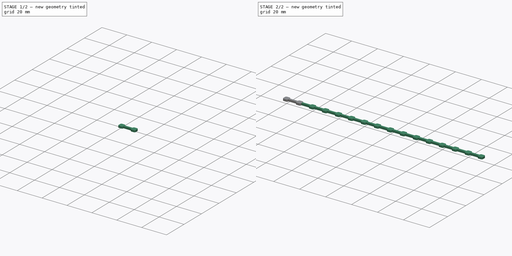
[diagram: build sequence overview — one tinted view per stage of 2, left to right]
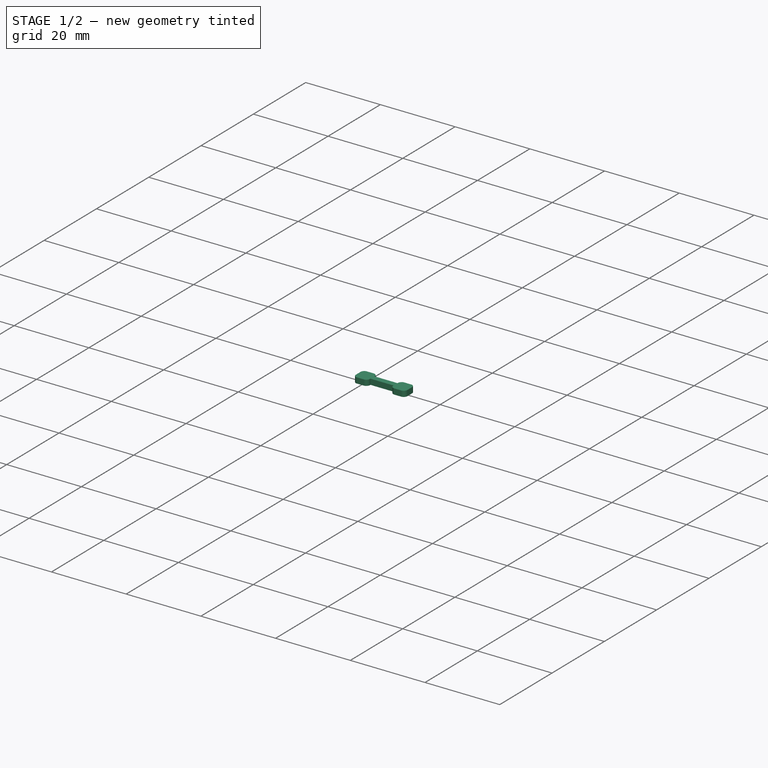
[diagram: stage 1 of 2 — iso view after this stage's code; geometry added in this stage tinted green]
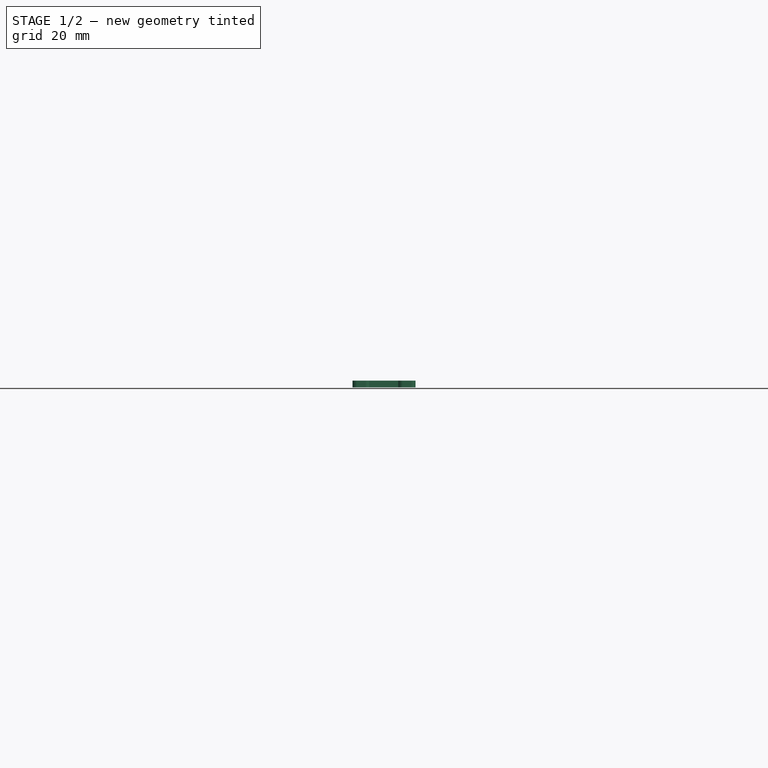
[diagram: stage 1 of 2 — front view after this stage's code; geometry added in this stage tinted green]
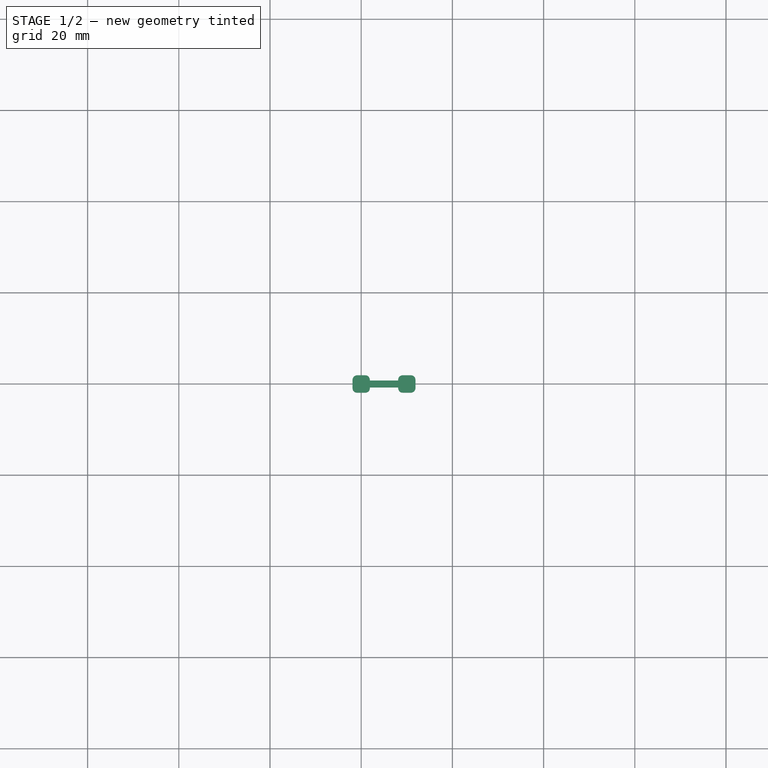
[diagram: stage 1 of 2 — top view after this stage's code; geometry added in this stage tinted green]
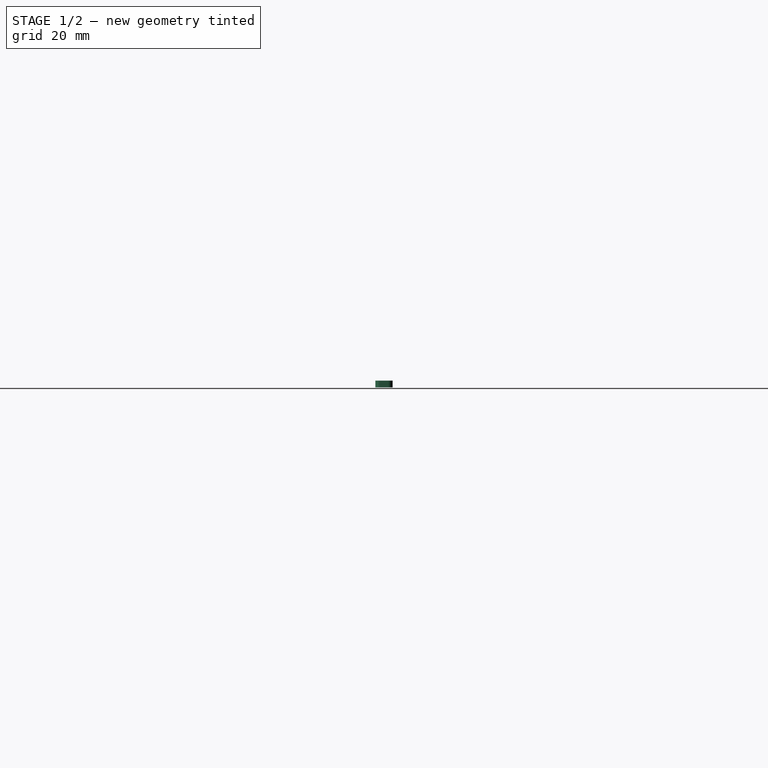
[diagram: stage 1 of 2 — right view after this stage's code; geometry added in this stage tinted green]
FCSTD DOCUMENT  (FreeCAD 0.20R27319 (Git))
Label: Spreader Dots
License: All rights reserved
LicenseURL: http://en.wikipedia.org/wiki/All_rights_reserved
objects: Sketcher::SketchObject×1, PartDesign::Pad×1, PartDesign::LinearPattern×1, PartDesign::Body×1
note: 5 computed .brp shape members not serialized (recipe doc carries the construction recipe); baked Part::Feature solids carry a one-line shape summary decoded from their .brp

FEATURE [Sketcher::SketchObject] Sketch
  FullyConstrained = true
  MapMode = 5
  Support = -> [XY_Plane]
  sketch-geometry (21):
    g0: LineSegment StartX=8.1 StartY=0.75 StartZ=0 EndX=1.9 EndY=0.75 EndZ=0
    g1: LineSegment StartX=1.9 StartY=-0.75 StartZ=0 EndX=8.1 EndY=-0.75 EndZ=0
    g2: GeomPoint X=5 Y=0 Z=0
    g3: LineSegment StartX=-1.9 StartY=0.9 StartZ=0 EndX=-1.9 EndY=-0.9 EndZ=0
    g4: LineSegment StartX=-0.9 StartY=-1.9 StartZ=0 EndX=0.9 EndY=-1.9 EndZ=0
    g5: LineSegment StartX=1.9 StartY=-0.9 StartZ=0 EndX=1.9 EndY=-0.75 EndZ=0
    g6: LineSegment StartX=0.9 StartY=1.9 StartZ=0 EndX=-0.9 EndY=1.9 EndZ=0
    g7: LineSegment StartX=1.9 StartY=0.75 StartZ=0 EndX=1.9 EndY=0.9 EndZ=0
    g8: ArcOfCircle CenterX=0.9 CenterY=0.9 CenterZ=0 NormalX=0 NormalY=0 NormalZ=1 AngleXU=0 Radius=1 StartAngle=1e-16 EndAngle=1.5708
    g9: ArcOfCircle CenterX=-0.9 CenterY=0.9 CenterZ=0 NormalX=0 NormalY=0 NormalZ=1 AngleXU=0 Radius=1 StartAngle=1.5708 EndAngle=3.14159
    g10: ArcOfCircle CenterX=-0.9 CenterY=-0.9 CenterZ=0 NormalX=0 NormalY=0 NormalZ=1 AngleXU=0 Radius=1 StartAngle=3.14159 EndAngle=4.71239
    g11: ArcOfCircle CenterX=0.9 CenterY=-0.9 CenterZ=0 NormalX=0 NormalY=0 NormalZ=1 AngleXU=0 Radius=1 StartAngle=4.71239 EndAngle=6.28319
    g12: LineSegment StartX=9.1 StartY=-1.9 StartZ=0 EndX=10.9 EndY=-1.9 EndZ=0
    g13: LineSegment StartX=11.9 StartY=-0.9 StartZ=0 EndX=11.9 EndY=0.9 EndZ=0
    g14: ArcOfCircle CenterX=9.1 CenterY=0.9 CenterZ=0 NormalX=0 NormalY=0 NormalZ=1 AngleXU=0 Radius=1 StartAngle=1.5708 EndAngle=3.14159
    g15: ArcOfCircle CenterX=9.1 CenterY=-0.9 CenterZ=0 NormalX=0 NormalY=0 NormalZ=1 AngleXU=0 Radius=1 StartAngle=3.14159 EndAngle=4.71239
    g16: ArcOfCircle CenterX=10.9 CenterY=0.9 CenterZ=0 NormalX=0 NormalY=0 NormalZ=1 AngleXU=0 Radius=1 StartAngle=0 EndAngle=1.5708
    g17: ArcOfCircle CenterX=10.9 CenterY=-0.9 CenterZ=0 NormalX=0 NormalY=0 NormalZ=1 AngleXU=0 Radius=1 StartAngle=4.71239 EndAngle=6.28319
    g18: LineSegment StartX=8.1 StartY=0.9 StartZ=0 EndX=8.1 EndY=0.75 EndZ=0
    g19: LineSegment StartX=8.1 StartY=-0.9 StartZ=0 EndX=8.1 EndY=-0.75 EndZ=0
    g20: LineSegment StartX=9.1 StartY=1.9 StartZ=0 EndX=10.9 EndY=1.9 EndZ=0
  constraints (52):
    c: Horizontal(g0)
    c: Horizontal(g1)
    c: Symmetric(g0,g1,g2)
    c: PointOnObject(g2,g-1)
    c: Horizontal(g4)
    c: Horizontal(g6)
    c: Vertical(g3)
    c: Vertical(g5)
    c: Coincident(g7,g0)
    c: Tangent(g6,g8) = -1.5708
    c: Tangent(g7,g8) = -1.5708
    c: Tangent(g3,g9) = -1.5708
    c: Tangent(g6,g9) = -1.5708
    c: Tangent(g3,g10) = -1.5708
    c: Tangent(g4,g10) = -1.5708
    c: Tangent(g4,g11) = -1.5708
    c: Tangent(g5,g11) = -1.5708
    c: Equal(g9,g8)
    c: Equal(g8,g11)
    c: Coincident(g1,g5)
    c: Symmetric(g9,g10,g-1)
    c: Radius(g9) = 1
    c: Symmetric(g7,g3,g-2)
    c: Equal(g6,g3)
    c: Equal(g3,g4)
    c: DistanceY(g4,g6) = 3.8
    c: Horizontal(g12)
    c: Vertical(g13)
    c: Tangent(g12,g15) = -1.5708
    c: Tangent(g13,g16) = -1.5708
    c: Tangent(g12,g17) = -1.5708
    c: Tangent(g13,g17) = -1.5708
    c: Equal(g14,g16)
    c: Equal(g16,g17)
    c: Equal(g17,g9)
    c: Vertical(g19)
    c: Vertical(g18)
    c: Coincident(g0,g18)
    c: Coincident(g1,g19)
    c: Horizontal(g20)
    c: Vertical(g0,g1)
    c: DistanceY(g1,g0) = 1.5
    c: Horizontal(g14,g8)
    c: Horizontal(g15,g11)
    c: Tangent(g20,g14) = 1.5708
    c: Tangent(g20,g16) = 1.5708
    c: Tangent(g18,g14) = -1.5708
    c: Tangent(g19,g15) = 1.5708
    c: Horizontal(g15,g17)
    c: Equal(g20,g13)
    c: DistanceX(g5,g13) = 10
    c: DistanceX(g3,g15) = 10
FEATURE [PartDesign::Pad] Pad
  Direction = (0,0,1)
  Length = 1.5
  Length2 = 10
  Profile = -> Sketch
  ReferenceAxis = -> Sketch [N_Axis]
  Type = 0
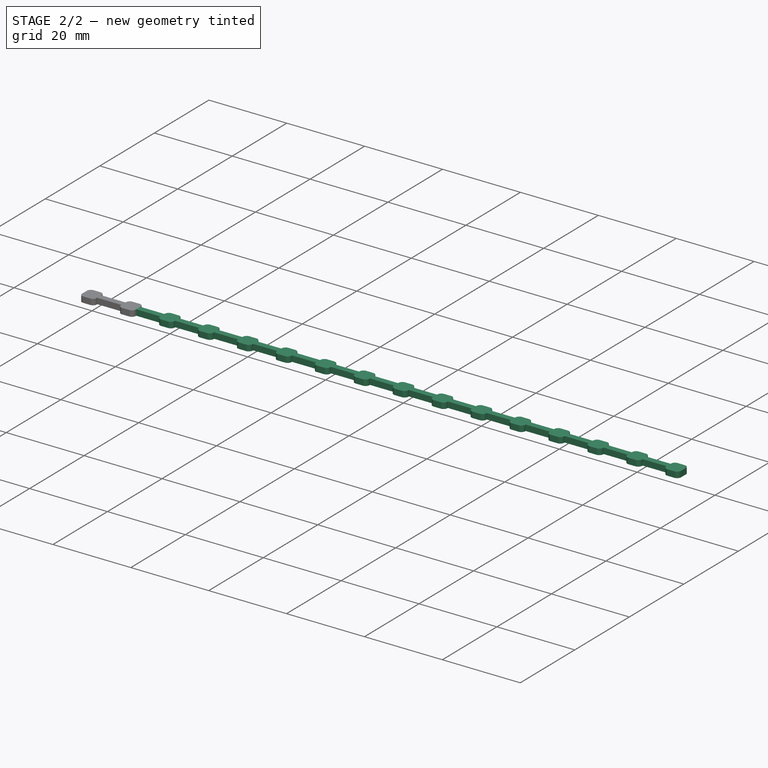
[diagram: stage 2 of 2 — iso view after this stage's code; geometry added in this stage tinted green]
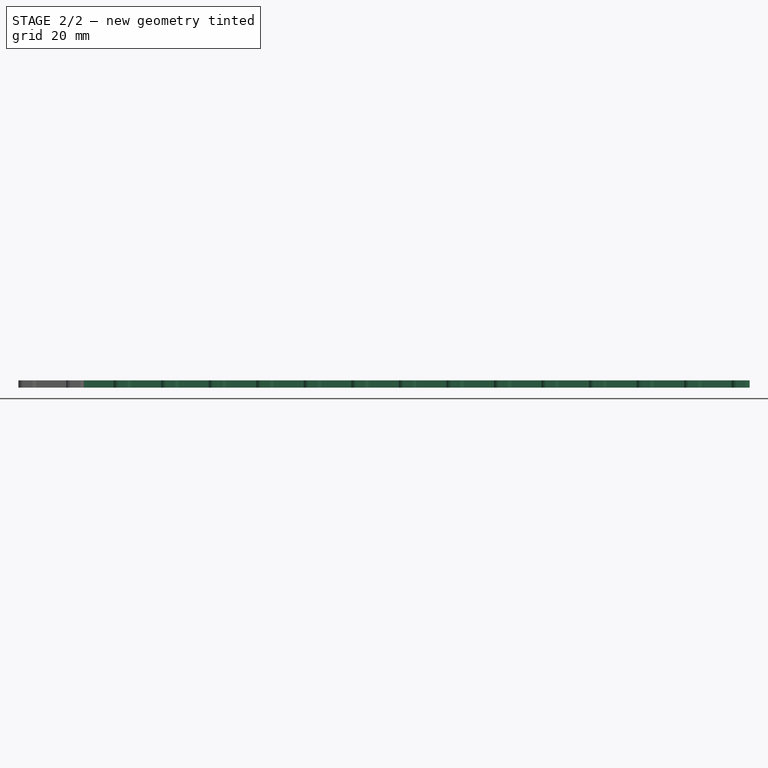
[diagram: stage 2 of 2 — front view after this stage's code; geometry added in this stage tinted green]
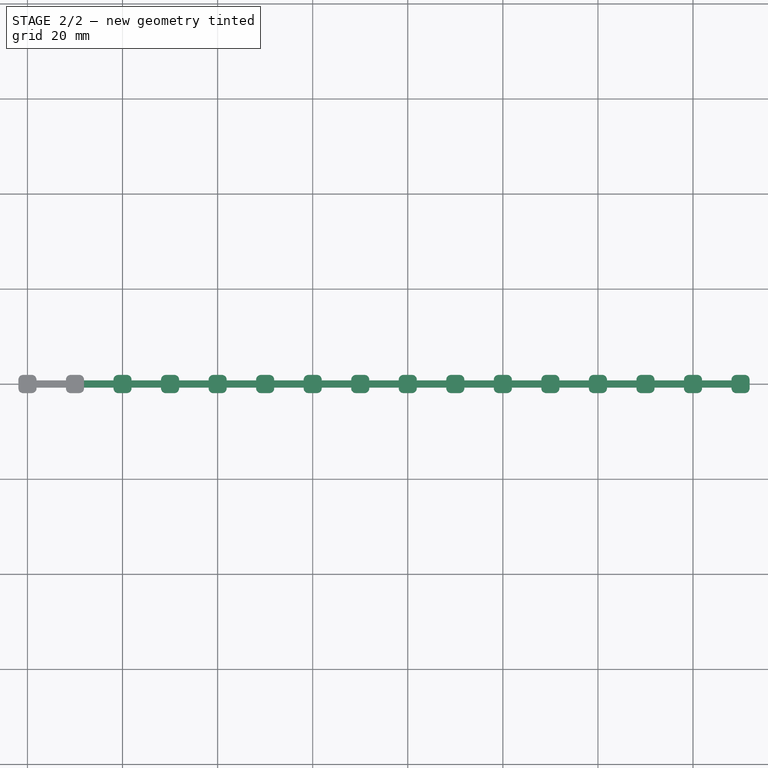
[diagram: stage 2 of 2 — top view after this stage's code; geometry added in this stage tinted green]
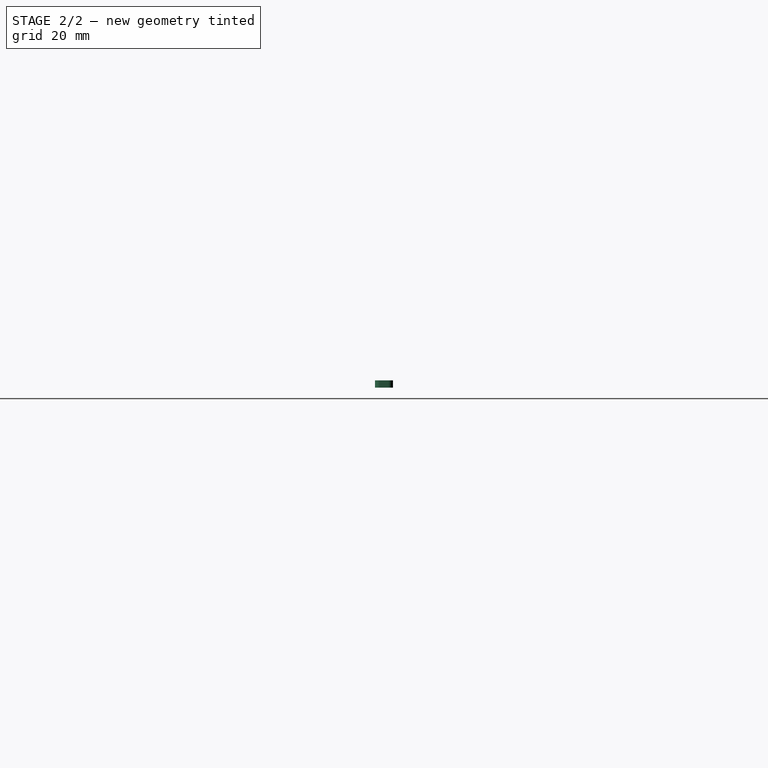
[diagram: stage 2 of 2 — right view after this stage's code; geometry added in this stage tinted green]
FEATURE [PartDesign::LinearPattern] LinearPattern
  BaseFeature = -> Pad
  Direction = -> Sketch [H_Axis]
  Length = 140
  Occurrences = 15
  Originals = -> [Pad]
  Overlap = 0
FEATURE [PartDesign::Body] Body
  Group = -> [Sketch,Pad,LinearPattern]
  Origin = -> Origin
  Tip = -> LinearPattern
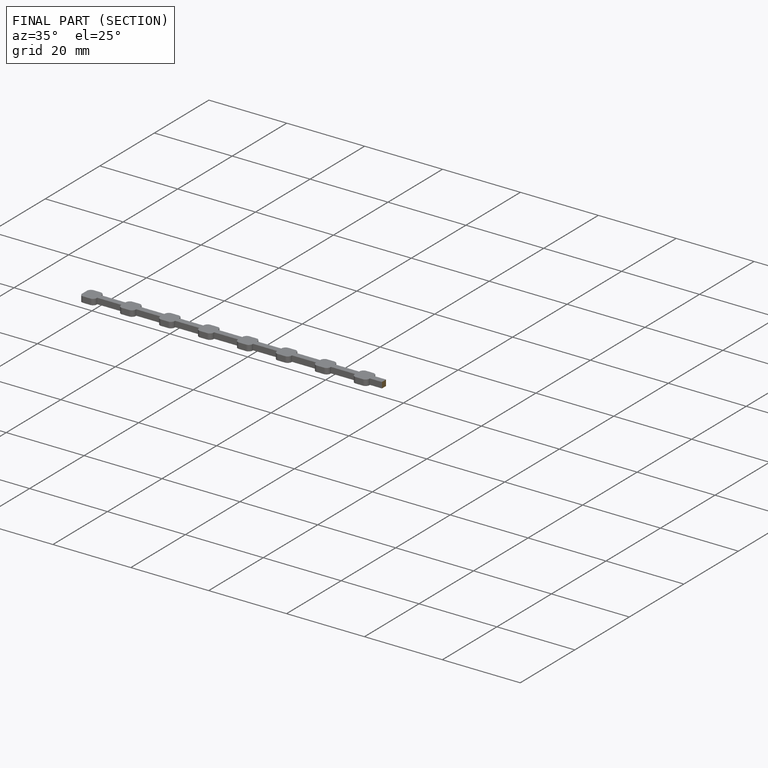
[diagram: finished part — half-section view (interior)]
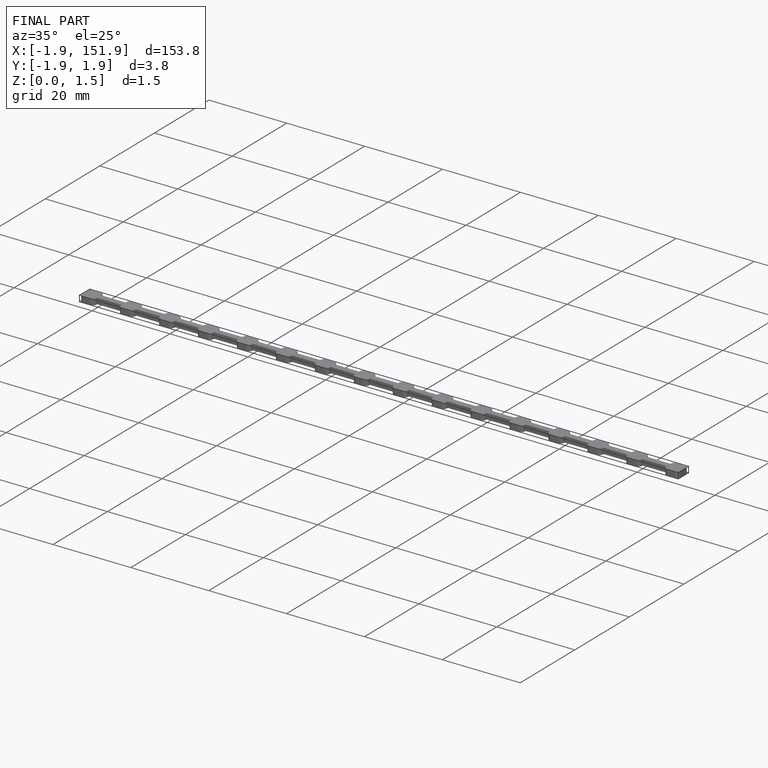
[diagram: finished part — iso view with bounding-box wireframe]
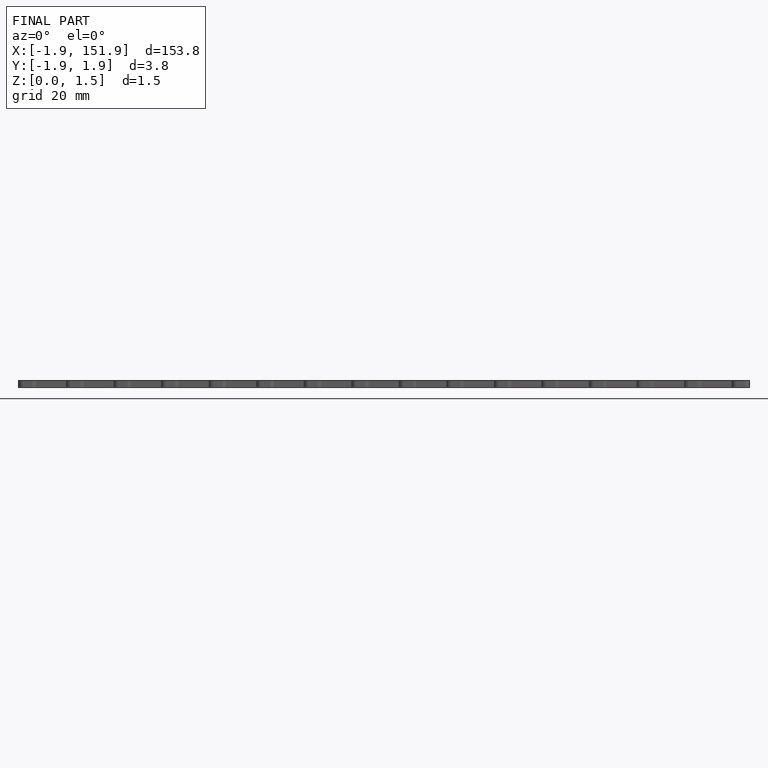
[diagram: finished part — front view with bounding-box wireframe]
